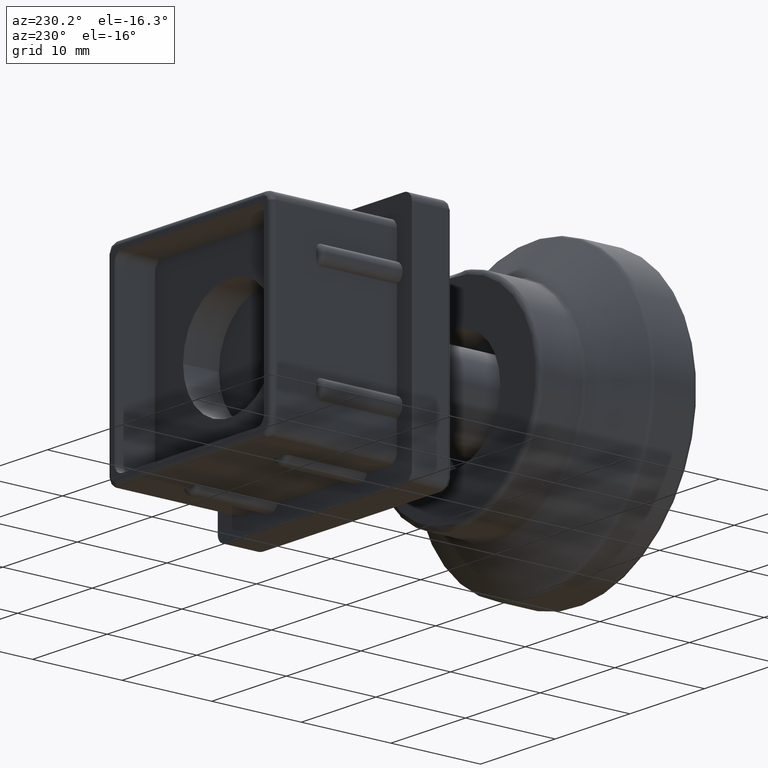
[diagram: clean part render]
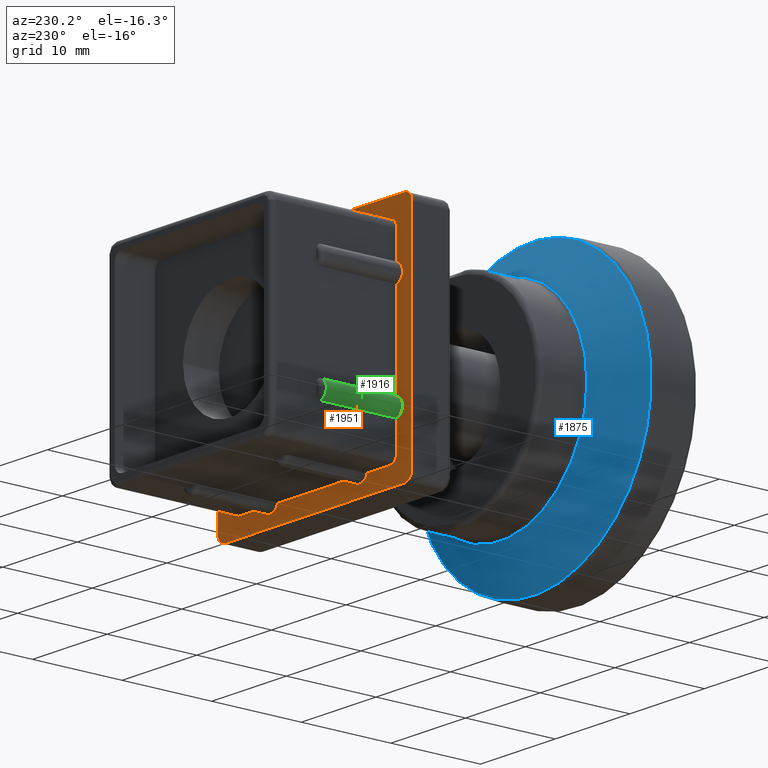
[diagram: same view with three faces highlighted in distinct colors, each labeled with its STEP entity id]
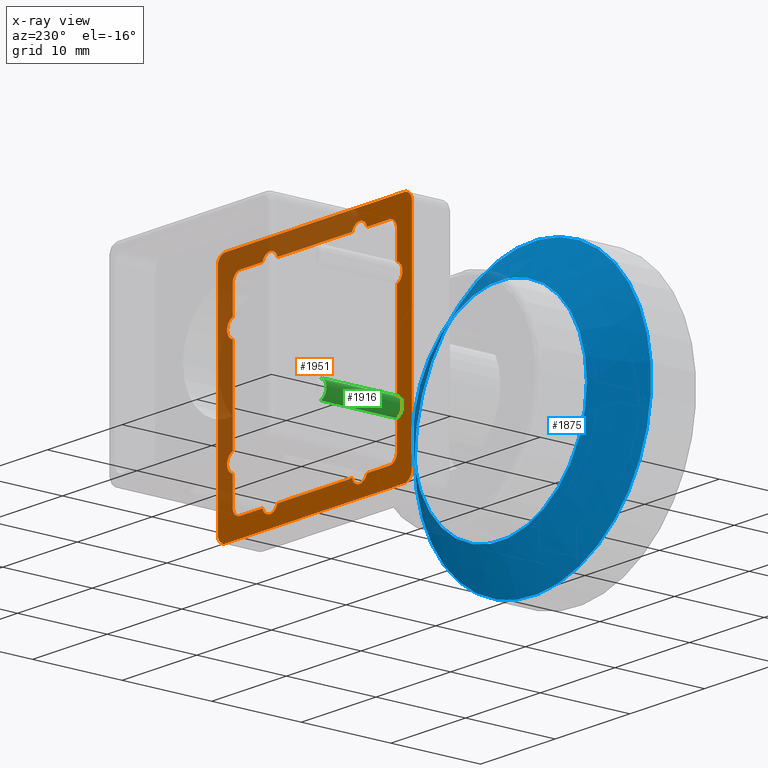
[diagram: x-ray of the same camera — body ghosted, the three highlighted faces saturated]
A machine part, auxiliary view with three faces highlighted in distinct colors.
The next image is the same camera in x-ray (body ghosted, the three faces saturated) — at least one of them is partly hidden behind the body in this view.
Their STEP definitions:

[orange] entity #1951 — the highlighted planar face has unit normal (0, 1, 0).
#57=FACE_BOUND('',#481,.T.);
#115=CIRCLE('',#2089,1.04166666666667);
#116=CIRCLE('',#2091,1.04166666666667);
#117=CIRCLE('',#2093,1.04166666666667);
#118=CIRCLE('',#2095,1.04166666666667);
#119=CIRCLE('',#2097,1.04166666666667);
#120=CIRCLE('',#2099,1.04166666666667);
#121=CIRCLE('',#2104,1.04166666666667);
#122=CIRCLE('',#2107,1.04166666666667);
#139=CIRCLE('',#2130,1.);
#140=CIRCLE('',#2133,1.);
#158=CIRCLE('',#2157,1.);
#159=CIRCLE('',#2159,1.);
#167=CIRCLE('',#2171,1.);
#168=CIRCLE('',#2173,1.);
#169=CIRCLE('',#2174,1.);
#170=CIRCLE('',#2175,1.);
#229=PLANE('',#2172);
#340=FACE_OUTER_BOUND('',#480,.T.);
#480=EDGE_LOOP('',(#1700,#1701,#1702,#1703,#1704,#1705,#1706,#1707));
#481=EDGE_LOOP('',(#1708,#1709,#1710,#1711,#1712,#1713,#1714,#1715,#1716,
#1717,#1718,#1719,#1720,#1721,#1722,#1723,#1724,#1725,#1726,#1727,#1728,
#1729,#1730,#1731));
#565=LINE('',#3413,#693);
#566=LINE('',#3415,#694);
#570=LINE('',#3422,#698);
#571=LINE('',#3424,#699);
#572=LINE('',#3426,#700);
#576=LINE('',#3433,#704);
#577=LINE('',#3435,#705);
#578=LINE('',#3437,#706);
#582=LINE('',#3444,#710);
#585=LINE('',#3453,#713);
#589=LINE('',#3461,#717);
#592=LINE('',#3465,#720);
#602=LINE('',#3552,#730);
#606=LINE('',#3561,#734);
#617=LINE('',#3672,#745);
#618=LINE('',#3675,#746);
#693=VECTOR('',#2522,10.);
#694=VECTOR('',#2523,2.99999999999999);
#698=VECTOR('',#2527,3.);
#699=VECTOR('',#2530,10.);
#700=VECTOR('',#2531,2.99999999999999);
#704=VECTOR('',#2535,3.);
#705=VECTOR('',#2538,10.);
#706=VECTOR('',#2539,2.99999999999999);
#710=VECTOR('',#2543,3.);
#713=VECTOR('',#2552,3.);
#717=VECTOR('',#2556,3.);
#720=VECTOR('',#2559,10.);
#730=VECTOR('',#2615,24.);
#734=VECTOR('',#2625,24.);
#745=VECTOR('',#2718,24.);
#746=VECTOR('',#2721,24.);
#889=VERTEX_POINT('',#3377);
#890=VERTEX_POINT('',#3379);
#891=VERTEX_POINT('',#3383);
#892=VERTEX_POINT('',#3385);
#893=VERTEX_POINT('',#3389);
#894=VERTEX_POINT('',#3391);
#895=VERTEX_POINT('',#3395);
#896=VERTEX_POINT('',#3397);
#897=VERTEX_POINT('',#3401);
#898=VERTEX_POINT('',#3403);
#899=VERTEX_POINT('',#3407);
#900=VERTEX_POINT('',#3409);
#901=VERTEX_POINT('',#3414);
#904=VERTEX_POINT('',#3420);
#905=VERTEX_POINT('',#3425);
#908=VERTEX_POINT('',#3431);
#909=VERTEX_POINT('',#3436);
#912=VERTEX_POINT('',#3442);
#913=VERTEX_POINT('',#3446);
#914=VERTEX_POINT('',#3448);
#915=VERTEX_POINT('',#3452);
#918=VERTEX_POINT('',#3458);
#919=VERTEX_POINT('',#3460);
#920=VERTEX_POINT('',#3463);
#937=VERTEX_POINT('',#3549);
#938=VERTEX_POINT('',#3551);
#939=VERTEX_POINT('',#3555);
#940=VERTEX_POINT('',#3559);
#941=VERTEX_POINT('',#3563);
#962=VERTEX_POINT('',#3667);
#963=VERTEX_POINT('',#3671);
#964=VERTEX_POINT('',#3673);
#1109=EDGE_CURVE('',#890,#889,#115,.T.);
#1112=EDGE_CURVE('',#892,#891,#116,.T.);
#1115=EDGE_CURVE('',#894,#893,#117,.T.);
#1118=EDGE_CURVE('',#896,#895,#118,.T.);
#1121=EDGE_CURVE('',#898,#897,#119,.T.);
#1124=EDGE_CURVE('',#900,#899,#120,.T.);
#1126=EDGE_CURVE('',#891,#890,#565,.T.);
#1127=EDGE_CURVE('',#901,#892,#566,.T.);
#1131=EDGE_CURVE('',#889,#904,#570,.T.);
#1132=EDGE_CURVE('',#895,#894,#571,.T.);
#1133=EDGE_CURVE('',#905,#896,#572,.T.);
#1137=EDGE_CURVE('',#893,#908,#576,.T.);
#1138=EDGE_CURVE('',#899,#898,#577,.T.);
#1139=EDGE_CURVE('',#909,#900,#578,.T.);
#1143=EDGE_CURVE('',#897,#912,#582,.T.);
#1145=EDGE_CURVE('',#914,#913,#121,.T.);
#1147=EDGE_CURVE('',#915,#914,#585,.T.);
#1151=EDGE_CURVE('',#919,#918,#589,.T.);
#1154=EDGE_CURVE('',#913,#920,#592,.T.);
#1155=EDGE_CURVE('',#920,#919,#122,.T.);
#1181=EDGE_CURVE('',#938,#937,#602,.T.);
#1184=EDGE_CURVE('',#939,#937,#139,.T.);
#1186=EDGE_CURVE('',#939,#940,#606,.T.);
#1188=EDGE_CURVE('',#941,#940,#140,.T.);
#1210=EDGE_CURVE('',#915,#904,#158,.F.);
#1211=EDGE_CURVE('',#909,#918,#159,.F.);
#1223=EDGE_CURVE('',#938,#962,#167,.T.);
#1225=EDGE_CURVE('',#941,#963,#617,.T.);
#1226=EDGE_CURVE('',#964,#963,#168,.T.);
#1227=EDGE_CURVE('',#964,#962,#618,.T.);
#1228=EDGE_CURVE('',#905,#912,#169,.F.);
#1229=EDGE_CURVE('',#901,#908,#170,.F.);
#1700=ORIENTED_EDGE('',*,*,#1223,.F.);
#1701=ORIENTED_EDGE('',*,*,#1181,.T.);
#1702=ORIENTED_EDGE('',*,*,#1184,.F.);
#1703=ORIENTED_EDGE('',*,*,#1186,.T.);
#1704=ORIENTED_EDGE('',*,*,#1188,.F.);
#1705=ORIENTED_EDGE('',*,*,#1225,.T.);
#1706=ORIENTED_EDGE('',*,*,#1226,.F.);
#1707=ORIENTED_EDGE('',*,*,#1227,.T.);
#1708=ORIENTED_EDGE('',*,*,#1109,.T.);
#1709=ORIENTED_EDGE('',*,*,#1131,.T.);
#1710=ORIENTED_EDGE('',*,*,#1210,.F.);
#1711=ORIENTED_EDGE('',*,*,#1147,.T.);
#1712=ORIENTED_EDGE('',*,*,#1145,.T.);
#1713=ORIENTED_EDGE('',*,*,#1154,.T.);
#1714=ORIENTED_EDGE('',*,*,#1155,.T.);
#1715=ORIENTED_EDGE('',*,*,#1151,.T.);
#1716=ORIENTED_EDGE('',*,*,#1211,.F.);
#1717=ORIENTED_EDGE('',*,*,#1139,.T.);
#1718=ORIENTED_EDGE('',*,*,#1124,.T.);
#1719=ORIENTED_EDGE('',*,*,#1138,.T.);
#1720=ORIENTED_EDGE('',*,*,#1121,.T.);
#1721=ORIENTED_EDGE('',*,*,#1143,.T.);
#1722=ORIENTED_EDGE('',*,*,#1228,.F.);
#1723=ORIENTED_EDGE('',*,*,#1133,.T.);
#1724=ORIENTED_EDGE('',*,*,#1118,.T.);
#1725=ORIENTED_EDGE('',*,*,#1132,.T.);
#1726=ORIENTED_EDGE('',*,*,#1115,.T.);
#1727=ORIENTED_EDGE('',*,*,#1137,.T.);
#1728=ORIENTED_EDGE('',*,*,#1229,.F.);
#1729=ORIENTED_EDGE('',*,*,#1127,.T.);
#1730=ORIENTED_EDGE('',*,*,#1112,.T.);
#1731=ORIENTED_EDGE('',*,*,#1126,.T.);
#1951=ADVANCED_FACE('',(#340,#57),#229,.T.);
#2089=AXIS2_PLACEMENT_3D('',#3380,#2487,#2488);
#2091=AXIS2_PLACEMENT_3D('',#3386,#2493,#2494);
#2093=AXIS2_PLACEMENT_3D('',#3392,#2499,#2500);
#2095=AXIS2_PLACEMENT_3D('',#3398,#2505,#2506);
#2097=AXIS2_PLACEMENT_3D('',#3404,#2511,#2512);
#2099=AXIS2_PLACEMENT_3D('',#3410,#2517,#2518);
#2104=AXIS2_PLACEMENT_3D('',#3449,#2547,#2548);
#2107=AXIS2_PLACEMENT_3D('',#3467,#2562,#2563);
#2130=AXIS2_PLACEMENT_3D('',#3557,#2620,#2621);
#2133=AXIS2_PLACEMENT_3D('',#3565,#2629,#2630);
#2157=AXIS2_PLACEMENT_3D('',#3638,#2681,#2682);
#2159=AXIS2_PLACEMENT_3D('',#3640,#2685,#2686);
#2171=AXIS2_PLACEMENT_3D('',#3668,#2713,#2714);
#2172=AXIS2_PLACEMENT_3D('',#3670,#2716,#2717);
#2173=AXIS2_PLACEMENT_3D('',#3674,#2719,#2720);
#2174=AXIS2_PLACEMENT_3D('',#3676,#2722,#2723);
#2175=AXIS2_PLACEMENT_3D('',#3677,#2724,#2725);
#2487=DIRECTION('center_axis',(0.,-1.,0.));
#2488=DIRECTION('ref_axis',(0.280000000000001,0.,0.96));
#2493=DIRECTION('center_axis',(0.,-1.,0.));
#2494=DIRECTION('ref_axis',(0.279999999999995,0.,0.960000000000001));
#2499=DIRECTION('center_axis',(0.,-1.,0.));
#2500=DIRECTION('ref_axis',(0.96,0.,-0.280000000000001));
#2505=DIRECTION('center_axis',(0.,-1.,0.));
#2506=DIRECTION('ref_axis',(0.960000000000001,0.,-0.279999999999995));
#2511=DIRECTION('center_axis',(0.,-1.,0.));
#2512=DIRECTION('ref_axis',(-0.280000000000001,0.,-0.96));
#2517=DIRECTION('center_axis',(0.,-1.,0.));
#2518=DIRECTION('ref_axis',(-0.279999999999995,0.,-0.960000000000002));
#2522=DIRECTION('',(3.02788097625043E-16,0.,1.));
#2523=DIRECTION('',(3.02788097625043E-16,0.,1.));
#2527=DIRECTION('',(3.02788097625043E-16,0.,1.));
#2530=DIRECTION('',(1.,0.,-2.01858731750028E-16));
#2531=DIRECTION('',(1.,0.,-2.01858731750028E-16));
#2535=DIRECTION('',(1.,0.,-2.01858731750028E-16));
#2538=DIRECTION('',(0.,0.,-1.));
#2539=DIRECTION('',(0.,0.,-1.));
#2543=DIRECTION('',(0.,0.,-1.));
#2547=DIRECTION('center_axis',(0.,-1.,0.));
#2548=DIRECTION('ref_axis',(-0.960000000000002,0.,0.279999999999995));
#2552=DIRECTION('',(-1.,0.,-1.00929365875014E-16));
#2556=DIRECTION('',(-1.,0.,-1.00929365875014E-16));
#2559=DIRECTION('',(-1.,0.,-1.00929365875014E-16));
#2562=DIRECTION('center_axis',(0.,-1.,0.));
#2563=DIRECTION('ref_axis',(-0.96,0.,0.280000000000001));
#2615=DIRECTION('',(0.,0.,-1.));
#2620=DIRECTION('center_axis',(0.,-1.,0.));
#2621=DIRECTION('ref_axis',(0.707106781186548,0.,-0.707106781186548));
#2625=DIRECTION('',(-1.,0.,1.70803542250024E-16));
#2629=DIRECTION('center_axis',(0.,-1.,0.));
#2630=DIRECTION('ref_axis',(-0.707106781186548,0.,-0.707106781186548));
#2681=DIRECTION('center_axis',(0.,-1.,0.));
#2682=DIRECTION('ref_axis',(0.707106781186548,0.,0.707106781186548));
#2685=DIRECTION('center_axis',(0.,-1.,0.));
#2686=DIRECTION('ref_axis',(-0.707106781186548,0.,0.707106781186548));
#2713=DIRECTION('center_axis',(0.,-1.,0.));
#2714=DIRECTION('ref_axis',(0.707106781186548,0.,0.707106781186548));
#2716=DIRECTION('center_axis',(0.,1.,0.));
#2717=DIRECTION('ref_axis',(0.,0.,1.));
#2718=DIRECTION('',(-1.70803542250024E-16,0.,1.));
#2719=DIRECTION('center_axis',(0.,-1.,0.));
#2720=DIRECTION('ref_axis',(-0.707106781186548,0.,0.707106781186548));
#2721=DIRECTION('',(1.,0.,0.));
#2722=DIRECTION('center_axis',(0.,-1.,0.));
#2723=DIRECTION('ref_axis',(-0.707106781186548,0.,-0.707106781186548));
#2724=DIRECTION('center_axis',(0.,-1.,0.));
#2725=DIRECTION('ref_axis',(0.707106781186548,0.,-0.707106781186547));
#3377=CARTESIAN_POINT('',(11.,0.,7.));
#3379=CARTESIAN_POINT('',(11.,0.,5.));
#3380=CARTESIAN_POINT('Origin',(10.7083333333333,0.,6.));
#3383=CARTESIAN_POINT('',(11.,0.,-5.00000000000001));
#3385=CARTESIAN_POINT('',(11.,0.,-7.00000000000001));
#3386=CARTESIAN_POINT('Origin',(10.7083333333333,0.,-6.00000000000001));
#3389=CARTESIAN_POINT('',(7.,0.,-11.));
#3391=CARTESIAN_POINT('',(5.,0.,-11.));
#3392=CARTESIAN_POINT('Origin',(6.,0.,-10.7083333333333));
#3395=CARTESIAN_POINT('',(-5.00000000000001,0.,-11.));
#3397=CARTESIAN_POINT('',(-7.00000000000001,0.,-11.));
#3398=CARTESIAN_POINT('Origin',(-6.00000000000001,0.,-10.7083333333333));
#3401=CARTESIAN_POINT('',(-11.,0.,-7.));
#3403=CARTESIAN_POINT('',(-11.,0.,-5.));
#3404=CARTESIAN_POINT('Origin',(-10.7083333333333,0.,-6.));
#3407=CARTESIAN_POINT('',(-11.,0.,5.00000000000001));
#3409=CARTESIAN_POINT('',(-11.,0.,7.00000000000001));
#3410=CARTESIAN_POINT('Origin',(-10.7083333333333,0.,6.00000000000001));
#3413=CARTESIAN_POINT('',(11.,0.,-11.));
#3414=CARTESIAN_POINT('',(11.,0.,-10.));
#3415=CARTESIAN_POINT('',(11.,0.,-11.));
#3420=CARTESIAN_POINT('',(11.,0.,10.));
#3422=CARTESIAN_POINT('',(11.,0.,-11.));
#3424=CARTESIAN_POINT('',(-11.,0.,-11.));
#3425=CARTESIAN_POINT('',(-10.,0.,-11.));
#3426=CARTESIAN_POINT('',(-11.,0.,-11.));
#3431=CARTESIAN_POINT('',(10.,0.,-11.));
#3433=CARTESIAN_POINT('',(-11.,0.,-11.));
#3435=CARTESIAN_POINT('',(-11.,0.,11.));
#3436=CARTESIAN_POINT('',(-11.,0.,10.));
#3437=CARTESIAN_POINT('',(-11.,0.,11.));
#3442=CARTESIAN_POINT('',(-11.,0.,-10.));
#3444=CARTESIAN_POINT('',(-11.,0.,11.));
#3446=CARTESIAN_POINT('',(5.00000000000001,0.,11.));
#3448=CARTESIAN_POINT('',(7.00000000000001,0.,11.));
#3449=CARTESIAN_POINT('Origin',(6.00000000000001,0.,10.7083333333333));
#3452=CARTESIAN_POINT('',(10.,0.,11.));
#3453=CARTESIAN_POINT('',(11.,0.,11.));
#3458=CARTESIAN_POINT('',(-10.,0.,11.));
#3460=CARTESIAN_POINT('',(-7.,0.,11.));
#3461=CARTESIAN_POINT('',(11.,0.,11.));
#3463=CARTESIAN_POINT('',(-5.,0.,11.));
#3465=CARTESIAN_POINT('',(11.,0.,11.));
#3467=CARTESIAN_POINT('Origin',(-6.,0.,10.7083333333333));
#3549=CARTESIAN_POINT('',(13.,0.,-12.));
#3551=CARTESIAN_POINT('',(13.,0.,12.));
#3552=CARTESIAN_POINT('',(13.,0.,13.));
#3555=CARTESIAN_POINT('',(12.,0.,-13.));
#3557=CARTESIAN_POINT('Origin',(12.,0.,-12.));
#3559=CARTESIAN_POINT('',(-12.,0.,-13.));
#3561=CARTESIAN_POINT('',(13.,0.,-13.));
#3563=CARTESIAN_POINT('',(-13.,0.,-12.));
#3565=CARTESIAN_POINT('Origin',(-12.,0.,-12.));
#3638=CARTESIAN_POINT('Origin',(10.,0.,10.));
#3640=CARTESIAN_POINT('Origin',(-10.,0.,10.));
#3667=CARTESIAN_POINT('',(12.,0.,13.));
#3668=CARTESIAN_POINT('Origin',(12.,0.,12.));
#3670=CARTESIAN_POINT('Origin',(1.92153985031277E-15,0.,1.83613807918776E-15));
#3671=CARTESIAN_POINT('',(-13.,0.,12.));
#3672=CARTESIAN_POINT('',(-13.,0.,-13.));
#3673=CARTESIAN_POINT('',(-12.,0.,13.));
#3674=CARTESIAN_POINT('Origin',(-12.,0.,12.));
#3675=CARTESIAN_POINT('',(-13.,0.,13.));
#3676=CARTESIAN_POINT('Origin',(-10.,0.,-10.));
#3677=CARTESIAN_POINT('Origin',(10.,0.,-10.));

[blue] entity #1875 — the highlighted conical surface has half-angle 48.366 deg.
#35=CONICAL_SURFACE('',#2016,13.75,48.3664606634298);
#43=FACE_BOUND('',#391,.T.);
#80=CIRCLE('',#2015,15.832181919415);
#81=CIRCLE('',#2017,11.667818080585);
#264=FACE_OUTER_BOUND('',#390,.T.);
#390=EDGE_LOOP('',(#1352));
#391=EDGE_LOOP('',(#1353));
#847=VERTEX_POINT('',#3093);
#848=VERTEX_POINT('',#3096);
#1049=EDGE_CURVE('',#847,#847,#80,.T.);
#1050=EDGE_CURVE('',#848,#848,#81,.T.);
#1352=ORIENTED_EDGE('',*,*,#1050,.F.);
#1353=ORIENTED_EDGE('',*,*,#1049,.F.);
#1875=ADVANCED_FACE('',(#264,#43),#35,.T.);
#2015=AXIS2_PLACEMENT_3D('',#3094,#2330,#2331);
#2016=AXIS2_PLACEMENT_3D('',#3095,#2332,#2333);
#2017=AXIS2_PLACEMENT_3D('',#3097,#2334,#2335);
#2330=DIRECTION('center_axis',(7.01244484352275E-17,-1.,7.01244484352276E-17));
#2331=DIRECTION('ref_axis',(-1.,-7.01244484352275E-17,0.));
#2332=DIRECTION('center_axis',(6.34413156928661E-17,-1.,0.));
#2333=DIRECTION('ref_axis',(1.,0.,0.));
#2334=DIRECTION('center_axis',(0.,1.,0.));
#2335=DIRECTION('ref_axis',(-1.,0.,0.));
#3093=CARTESIAN_POINT('',(15.832181919415,5.1491716271867,2.46519032881566E-31));
#3094=CARTESIAN_POINT('Origin',(-1.11022302462516E-15,5.1491716271867,-1.93888309111301E-15));
#3095=CARTESIAN_POINT('Origin',(-4.44089209850063E-16,7.,0.));
#3096=CARTESIAN_POINT('',(11.667818080585,8.8508283728133,-2.85779121308442E-15));
#3097=CARTESIAN_POINT('Origin',(0.,8.8508283728133,-1.42889560654221E-15));

[green] entity #1916 — the highlighted cylindrical surface (edge-blend (fillet) strip) has radius 1.0417 mm, axis along (0, 1, 0).
#104=CIRCLE('',#2066,1.04166666666667);
#119=CIRCLE('',#2097,1.04166666666667);
#305=FACE_OUTER_BOUND('',#441,.T.);
#441=EDGE_LOOP('',(#1499,#1500,#1501,#1502));
#561=LINE('',#3402,#689);
#562=LINE('',#3405,#690);
#689=VECTOR('',#2510,8.50000000000001);
#690=VECTOR('',#2513,8.50000000000001);
#865=VERTEX_POINT('',#3203);
#868=VERTEX_POINT('',#3217);
#897=VERTEX_POINT('',#3401);
#898=VERTEX_POINT('',#3403);
#1081=EDGE_CURVE('',#868,#865,#104,.T.);
#1120=EDGE_CURVE('',#897,#868,#561,.T.);
#1121=EDGE_CURVE('',#898,#897,#119,.T.);
#1122=EDGE_CURVE('',#865,#898,#562,.T.);
#1499=ORIENTED_EDGE('',*,*,#1081,.F.);
#1500=ORIENTED_EDGE('',*,*,#1120,.F.);
#1501=ORIENTED_EDGE('',*,*,#1121,.F.);
#1502=ORIENTED_EDGE('',*,*,#1122,.F.);
#1823=CYLINDRICAL_SURFACE('',#2096,1.04166666666667);
#1916=ADVANCED_FACE('',(#305),#1823,.T.);
#2066=AXIS2_PLACEMENT_3D('',#3228,#2434,#2435);
#2096=AXIS2_PLACEMENT_3D('',#3400,#2508,#2509);
#2097=AXIS2_PLACEMENT_3D('',#3404,#2511,#2512);
#2434=DIRECTION('center_axis',(0.,1.,0.));
#2435=DIRECTION('ref_axis',(-1.,0.,0.));
#2508=DIRECTION('center_axis',(0.,1.,0.));
#2509=DIRECTION('ref_axis',(-0.280000000000001,0.,-0.96));
#2510=DIRECTION('',(0.,1.,0.));
#2511=DIRECTION('center_axis',(0.,-1.,0.));
#2512=DIRECTION('ref_axis',(-0.280000000000001,0.,-0.96));
#2513=DIRECTION('',(0.,-1.,0.));
#3203=CARTESIAN_POINT('',(-11.,8.50000000000001,-5.));
#3217=CARTESIAN_POINT('',(-11.,8.50000000000001,-7.));
#3228=CARTESIAN_POINT('Origin',(-10.7083333333333,8.50000000000001,-6.));
#3400=CARTESIAN_POINT('Origin',(-10.7083333333333,0.,-6.));
#3401=CARTESIAN_POINT('',(-11.,0.,-7.));
#3402=CARTESIAN_POINT('',(-11.,0.,-7.));
#3403=CARTESIAN_POINT('',(-11.,0.,-5.));
#3404=CARTESIAN_POINT('Origin',(-10.7083333333333,0.,-6.));
#3405=CARTESIAN_POINT('',(-11.,0.,-5.));